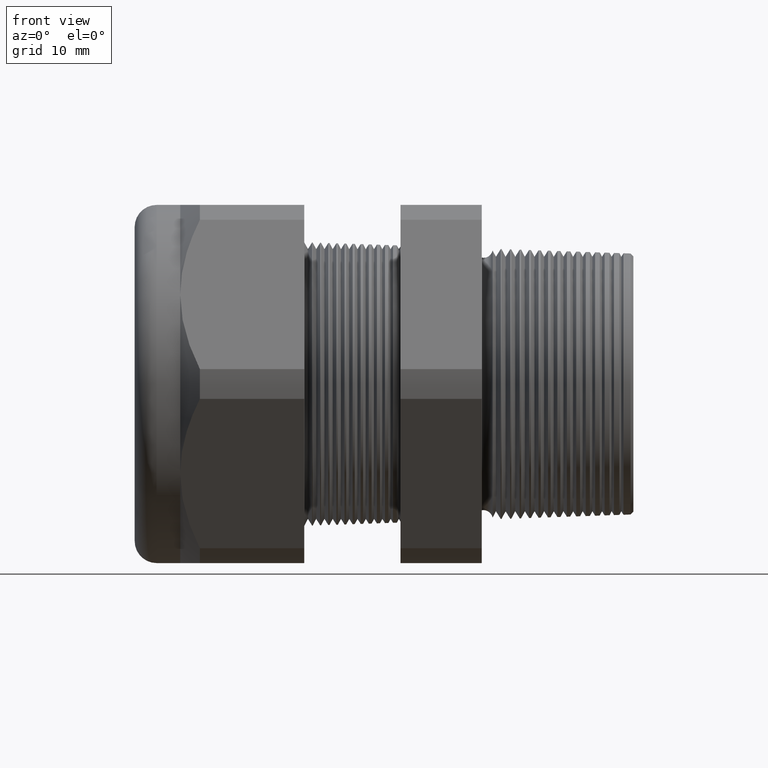
[diagram: clean part render]
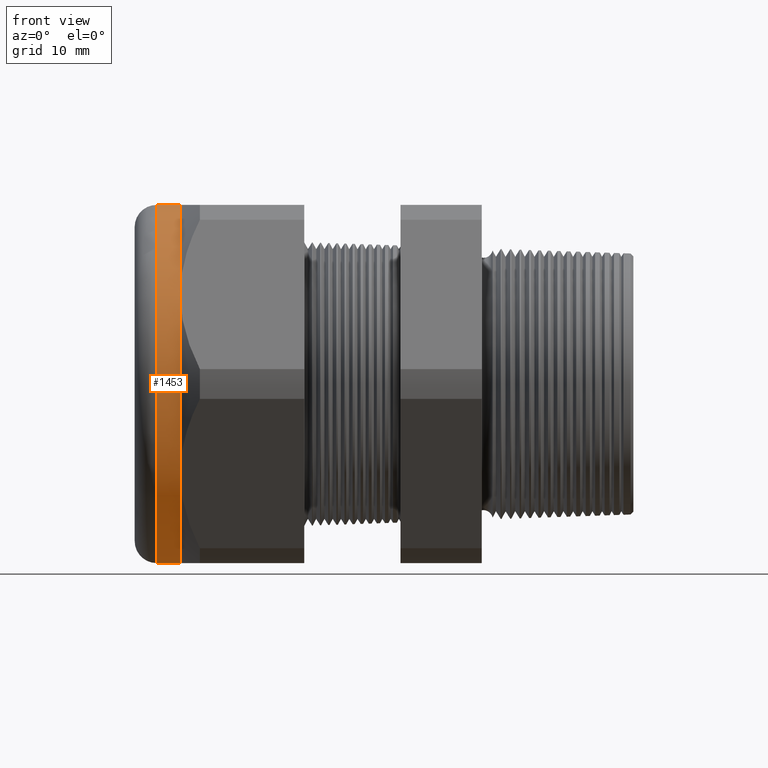
[diagram: same view with one face highlighted and labeled with its STEP entity id]
A machine part, front view. The second image highlights one B-rep face of the part: STEP entity #1453.
In plain terms, the highlighted cylindrical surface (partial cylindrical patch) has radius 16.51 mm, axis along (1, 0, 0).
Its self-contained STEP definition (entity closure, byte-faithful):
#302 = VERTEX_POINT ( 'NONE', #2687 ) ;
#813 = VERTEX_POINT ( 'NONE', #3706 ) ;
#814 = VERTEX_POINT ( 'NONE', #3705 ) ;
#828 = VERTEX_POINT ( 'NONE', #3747 ) ;
#837 = VERTEX_POINT ( 'NONE', #3729 ) ;
#839 = EDGE_CURVE ( 'NONE', #813, #837, #3727, .T. ) ;
#906 = EDGE_CURVE ( 'NONE', #814, #828, #3914, .T. ) ;
#1314 = VERTEX_POINT ( 'NONE', #4679 ) ;
#1431 = ORIENTED_EDGE ( 'NONE', *, *, #1432, .T. ) ;
#1432 = EDGE_CURVE ( 'NONE', #814, #813, #4913, .T. ) ;
#1433 = ORIENTED_EDGE ( 'NONE', *, *, #839, .T. ) ;
#1434 = ORIENTED_EDGE ( 'NONE', *, *, #1435, .F. ) ;
#1435 = EDGE_CURVE ( 'NONE', #302, #837, #4968, .T. ) ;
#1436 = ORIENTED_EDGE ( 'NONE', *, *, #1437, .F. ) ;
#1437 = EDGE_CURVE ( 'NONE', #1314, #302, #4963, .T. ) ;
#1438 = ORIENTED_EDGE ( 'NONE', *, *, #1439, .F. ) ;
#1439 = EDGE_CURVE ( 'NONE', #828, #1314, #4958, .T. ) ;
#1453 = ADVANCED_FACE ( 'NONE', ( #4990 ), #4989, .T. ) ;
#1454 = EDGE_LOOP ( 'NONE', ( #1455, #1431, #1433, #1434, #1436, #1438 ) ) ;
#1455 = ORIENTED_EDGE ( 'NONE', *, *, #906, .F. ) ;
#2209 = DIRECTION ( 'NONE',  ( 1.000000000000000000, 0.0000000000000000000, 0.0000000000000000000 ) ) ;
#2687 = CARTESIAN_POINT ( 'NONE',  ( -1.404645669291338700, -0.5629165124598851700, -0.3250000000000002300 ) ) ;
#2964 = VECTOR ( 'NONE', #2209, 39.37007874015748100 ) ;
#3223 = CARTESIAN_POINT ( 'NONE',  ( 0.0000000000000000000, 0.0000000000000000000, -0.6500000000000000200 ) ) ;
#3705 = CARTESIAN_POINT ( 'NONE',  ( -1.490000000000000000, 7.960204194457796700E-017, 0.6500000000000000200 ) ) ;
#3706 = CARTESIAN_POINT ( 'NONE',  ( -1.490000000000000000, 0.0000000000000000000, -0.6500000000000000200 ) ) ;
#3727 = LINE ( 'NONE', #3223, #2964 ) ;
#3729 = CARTESIAN_POINT ( 'NONE',  ( -1.404645669291338700, 0.0000000000000000000, -0.6500000000000001300 ) ) ;
#3747 = CARTESIAN_POINT ( 'NONE',  ( -1.404645669291338700, 0.0000000000000000000, 0.6499999999999999100 ) ) ;
#3911 = DIRECTION ( 'NONE',  ( 1.000000000000000000, 0.0000000000000000000, 0.0000000000000000000 ) ) ;
#3912 = VECTOR ( 'NONE', #3911, 39.37007874015748100 ) ;
#3913 = CARTESIAN_POINT ( 'NONE',  ( 0.0000000000000000000, 7.960204194457796700E-017, 0.6500000000000000200 ) ) ;
#3914 = LINE ( 'NONE', #3913, #3912 ) ;
#4679 = CARTESIAN_POINT ( 'NONE',  ( -1.404645669291338700, -0.5629165124598853900, 0.3249999999999999000 ) ) ;
#4908 = AXIS2_PLACEMENT_3D ( 'NONE', #4971, #4970, #4969 ) ;
#4913 = CIRCLE ( 'NONE', #4908, 0.6500000000000000200 ) ;
#4954 = DIRECTION ( 'NONE',  ( 0.0000000000000000000, 0.0000000000000000000, -1.000000000000000000 ) ) ;
#4955 = DIRECTION ( 'NONE',  ( 1.000000000000000000, 0.0000000000000000000, 0.0000000000000000000 ) ) ;
#4956 = CARTESIAN_POINT ( 'NONE',  ( -1.404645669291338500, 0.0000000000000000000, 0.0000000000000000000 ) ) ;
#4957 = AXIS2_PLACEMENT_3D ( 'NONE', #4956, #4955, #4954 ) ;
#4958 = CIRCLE ( 'NONE', #4957, 0.6500000000000000200 ) ;
#4959 = DIRECTION ( 'NONE',  ( 0.0000000000000000000, 0.0000000000000000000, -1.000000000000000000 ) ) ;
#4960 = DIRECTION ( 'NONE',  ( 1.000000000000000000, 0.0000000000000000000, 0.0000000000000000000 ) ) ;
#4961 = CARTESIAN_POINT ( 'NONE',  ( -1.404645669291338500, 0.0000000000000000000, 0.0000000000000000000 ) ) ;
#4962 = AXIS2_PLACEMENT_3D ( 'NONE', #4961, #4960, #4959 ) ;
#4963 = CIRCLE ( 'NONE', #4962, 0.6500000000000000200 ) ;
#4964 = DIRECTION ( 'NONE',  ( 0.0000000000000000000, 0.0000000000000000000, -1.000000000000000000 ) ) ;
#4965 = DIRECTION ( 'NONE',  ( 1.000000000000000000, 0.0000000000000000000, 0.0000000000000000000 ) ) ;
#4966 = CARTESIAN_POINT ( 'NONE',  ( -1.404645669291338500, 0.0000000000000000000, 0.0000000000000000000 ) ) ;
#4967 = AXIS2_PLACEMENT_3D ( 'NONE', #4966, #4965, #4964 ) ;
#4968 = CIRCLE ( 'NONE', #4967, 0.6500000000000000200 ) ;
#4969 = DIRECTION ( 'NONE',  ( 0.0000000000000000000, 0.0000000000000000000, 1.000000000000000000 ) ) ;
#4970 = DIRECTION ( 'NONE',  ( 1.000000000000000000, 0.0000000000000000000, 0.0000000000000000000 ) ) ;
#4971 = CARTESIAN_POINT ( 'NONE',  ( -1.490000000000000000, 0.0000000000000000000, 0.0000000000000000000 ) ) ;
#4984 = DIRECTION ( 'NONE',  ( 0.0000000000000000000, 0.0000000000000000000, -1.000000000000000000 ) ) ;
#4985 = DIRECTION ( 'NONE',  ( 1.000000000000000000, 0.0000000000000000000, 0.0000000000000000000 ) ) ;
#4986 = CARTESIAN_POINT ( 'NONE',  ( 0.0000000000000000000, 0.0000000000000000000, 0.0000000000000000000 ) ) ;
#4987 = AXIS2_PLACEMENT_3D ( 'NONE', #4986, #4985, #4984 ) ;
#4989 = CYLINDRICAL_SURFACE ( 'NONE', #4987, 0.6500000000000000200 ) ;
#4990 = FACE_OUTER_BOUND ( 'NONE', #1454, .T. ) ;